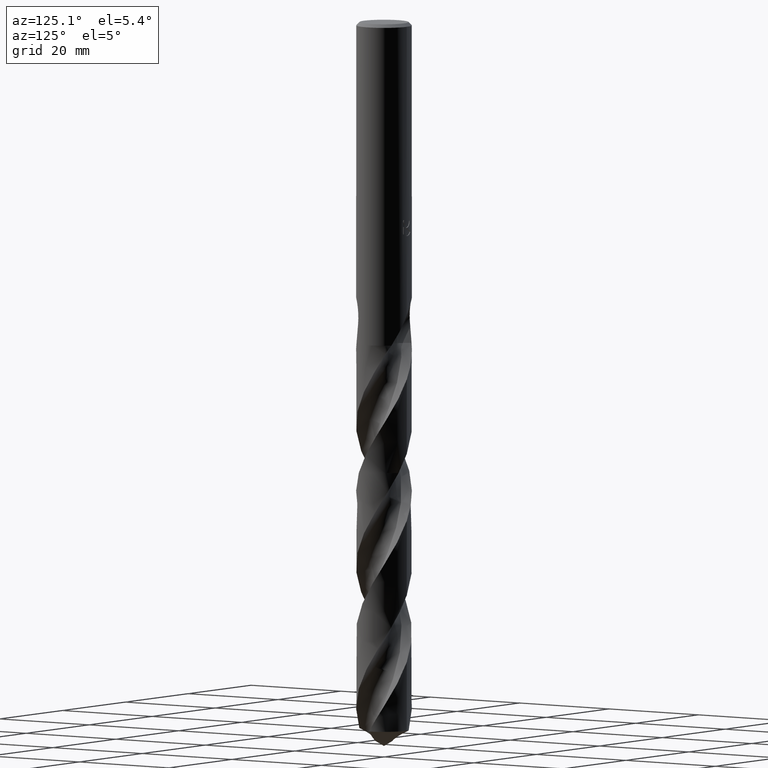
[diagram: clean part render]
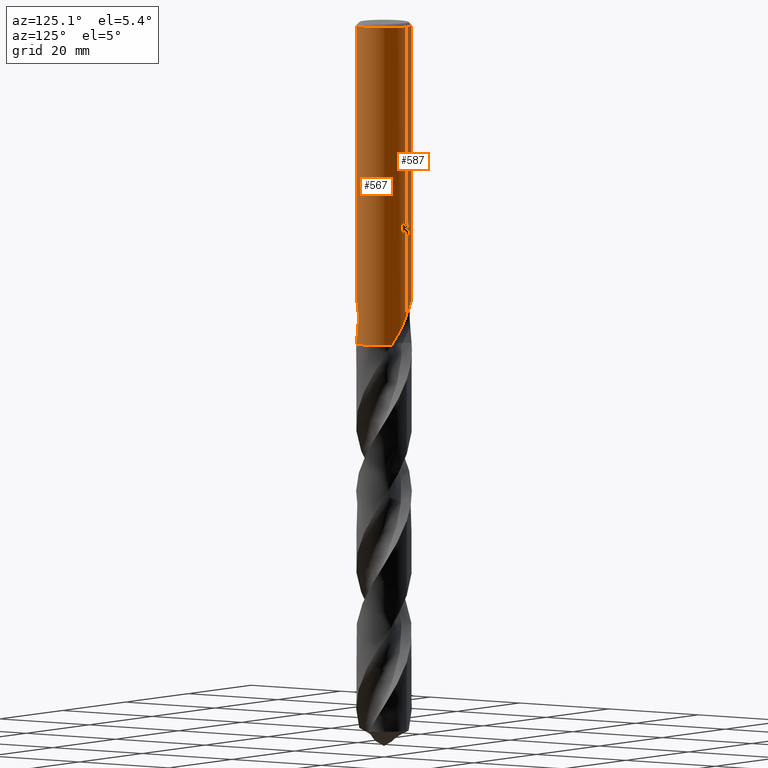
[diagram: same view with one multi-face feature highlighted, each face labeled with its STEP entity id]
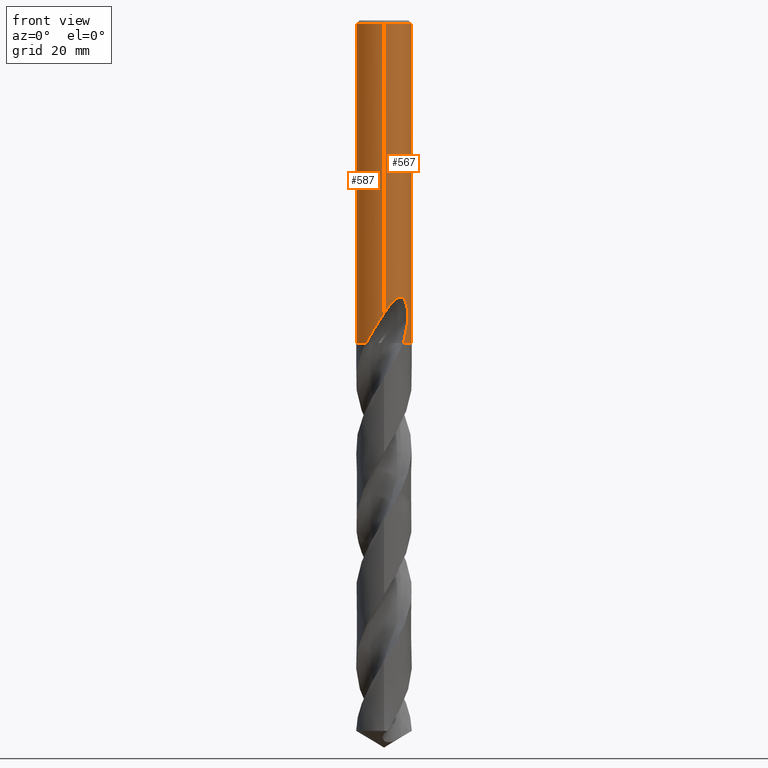
[diagram: same view with one multi-face feature highlighted, each face labeled with its STEP entity id]
A machine part, auxiliary view. The highlighted faces form ONE feature: a constant-radius fillet chain: 2 tangent blend faces with common blend radius 5.1 mm. The faces share edges in the B-rep.
A second angle (front view) of the same feature is appended — it is thin or edge-on in the first view.
Their STEP definitions:
[1] entity #587 (Cylinder):
#273=EDGE_CURVE('',#465,#723,#772,.T.);
#289=EDGE_CURVE('',#565,#593,#790,.T.);
#367=EDGE_CURVE('',#379,#389,#874,.T.);
#379=VERTEX_POINT('',#887);
#389=VERTEX_POINT('',#898);
#401=VERTEX_POINT('',#911);
#453=VERTEX_POINT('',#964);
#455=EDGE_CURVE('',#379,#597,#966,.T.);
#459=VERTEX_POINT('',#970);
#461=VERTEX_POINT('',#972);
#465=VERTEX_POINT('',#976);
#467=EDGE_CURVE('',#461,#453,#978,.T.);
#485=EDGE_CURVE('',#723,#547,#997,.T.);
#505=EDGE_CURVE('',#593,#597,#1022,.T.);
#515=VERTEX_POINT('',#1034);
#535=EDGE_CURVE('',#515,#595,#1056,.T.);
#547=VERTEX_POINT('',#1070);
#551=EDGE_CURVE('',#547,#459,#1074,.T.);
#553=EDGE_CURVE('',#459,#515,#1076,.T.);
#565=VERTEX_POINT('',#1089);
#587=ADVANCED_FACE('',(#1115),#1116,.T.);
#593=VERTEX_POINT('',#1122);
#595=VERTEX_POINT('',#1124);
#597=VERTEX_POINT('',#1126);
#613=EDGE_CURVE('',#595,#461,#1142,.T.);
#671=EDGE_CURVE('',#401,#565,#1206,.T.);
#693=EDGE_CURVE('',#389,#699,#1231,.T.);
#699=VERTEX_POINT('',#1238);
#721=EDGE_CURVE('',#453,#401,#1261,.T.);
#723=VERTEX_POINT('',#1263);
#741=EDGE_CURVE('',#699,#465,#1282,.T.);
#772=LINE('',#1308,#1309);
#790=B_SPLINE_CURVE_WITH_KNOTS('',3,(#1361,#1362,#1363,#1364,#1365,#1366,#1367,#1368,#1369,#1370,#1371,#1372,#1373,#1374,#1375,#1376,#1377,#1378,#1379,#1380,#1381,#1382,#1383,#1384,#1385,#1386,#1387,#1388,#1389,#1390),.UNSPECIFIED.,.F.,.F.,(4,2,2,2,2,2,2,2,2,2,2,2,2,2,4),(0.0,2.49507195108771,3.85909418089835,5.09509911552188,6.53135879807487,8.25636433044795,9.74920674358357,10.4265543005104,10.9216576712197,11.3901997545515,11.9846176148891,12.8543127021492,14.090659980326,14.8994055225725,15.749331237709),.UNSPECIFIED.);
#874=B_SPLINE_CURVE_WITH_KNOTS('',3,(#2695,#2696,#2697,#2698,#2699,#2700,#2701,#2702,#2703,#2704,#2705,#2706,#2707,#2708,#2709,#2710,#2711,#2712,#2713,#2714,#2715,#2716,#2717,#2718,#2719,#2720,#2721,#2722,#2723,#2724),.UNSPECIFIED.,.F.,.F.,(4,2,2,2,2,2,2,2,2,2,2,2,2,2,4),(0.0,2.4950719510877,3.85909418089809,5.09509911552121,6.53135879807394,8.25636433044676,9.74920674358221,10.4265543005089,10.9216576712182,11.3901997545499,11.9846176148873,12.8543127021487,14.0906599803301,14.8994055225793,15.7493312377187),.UNSPECIFIED.);
#887=CARTESIAN_POINT('',(-3.24742117750425,-3.93246178568806,-59.0));
#898=CARTESIAN_POINT('',(1.57483056814362E-012,-5.1,-53.5838170409705));
#911=CARTESIAN_POINT('',(-4.34837494064783E-016,5.1,-39.0310253601034));
#964=CARTESIAN_POINT('',(-1.337052752443,4.92161456609359,-38.3720803908795));
#966=CIRCLE('',#3366,5.1);
#970=CARTESIAN_POINT('',(-0.562333990228013,5.06890328211481,-36.3171221986971));
#972=CARTESIAN_POINT('',(2.19355985221817E-015,5.1,-37.7128911336578));
#976=CARTESIAN_POINT('',(0.0,5.1,-0.600000000000001));
#978=ELLIPSE('',#3379,5.68613500341859,5.1);
#997=B_SPLINE_CURVE_WITH_KNOTS('',3,(#3403,#3404,#3405,#3406,#3407,#3408,#3409,#3410,#3411,#3412,#3413,#3414,#3415,#3416,#3417,#3418,#3419,#3420,#3421,#3422,#3423,#3424,#3425,#3426,#3427,#3428,#3429),.UNSPECIFIED.,.F.,.F.,(4,2,3,2,2,2,2,2,2,2,2,2,4),(-0.54245000038307,-0.271225000191535,0.0,0.271225000191535,0.542450000383069,0.814222661505411,1.08599532262775,1.35684967927438,1.62770403592101,1.89882935782258,2.16995467972414,2.4410800016257,2.71220532352727),.UNSPECIFIED.);
#1022=B_SPLINE_CURVE_WITH_KNOTS('',3,(#3896,#3897,#3898,#3899),.UNSPECIFIED.,.F.,.F.,(4,4),(0.0,2.92581018479683),.UNSPECIFIED.);
#1034=CARTESIAN_POINT('',(-1.0350734039088,4.99385853309049,-36.3171221986971));
#1056=B_SPLINE_CURVE_WITH_KNOTS('',3,(#3966,#3967,#3968,#3969,#3970,#3971,#3972,#3973,#3974,#3975,#3976,#3977,#3978,#3979),.UNSPECIFIED.,.F.,.F.,(4,2,2,2,2,2,4),(3.1327778661681,3.58005301390658,4.02732816164506,4.47460330938354,4.92100069602385,5.36739808266417,5.81617911595777),.UNSPECIFIED.);
#1070=CARTESIAN_POINT('',(-0.486378944383045,5.07675442802395,-36.6432837483006));
#1074=B_SPLINE_CURVE_WITH_KNOTS('',3,(#4244,#4245,#4246,#4247,#4248,#4249,#4250,#4251,#4252,#4253,#4254,#4255,#4256,#4257,#4258,#4259,#4260,#4261,#4262,#4263,#4264,#4265,#4266,#4267,#4268,#4269,#4270),.UNSPECIFIED.,.F.,.F.,(4,2,3,2,2,2,2,2,2,2,2,2,4),(-0.54245000038307,-0.271225000191535,0.0,0.271225000191535,0.542450000383069,0.814222661505411,1.08599532262775,1.35684967927438,1.62770403592101,1.89882935782258,2.16995467972414,2.4410800016257,2.71220532352727),.UNSPECIFIED.);
#1076=CIRCLE('',#4273,5.1);
#1089=CARTESIAN_POINT('',(-1.5728321666993E-012,5.1,-53.5838170409705));
#1115=FACE_OUTER_BOUND('',#5776,.T.);
#1116=CYLINDRICAL_SURFACE('',#5777,5.1);
#1122=CARTESIAN_POINT('',(-4.1495750328572,2.96496661814061,-56.2123408369702));
#1124=CARTESIAN_POINT('',(-4.71438336917936E-016,5.1,-37.5000801551882));
#1126=CARTESIAN_POINT('',(-3.54621439273004,3.66529173201729,-59.0));
#1142=LINE('',#5985,#5986);
#1206=LINE('',#6931,#6932);
#1231=LINE('',#6989,#6990);
#1238=CARTESIAN_POINT('',(6.24549240449412E-016,-5.1,-0.600000000000001));
#1261=B_SPLINE_CURVE_WITH_KNOTS('',3,(#7194,#7195,#7196,#7197,#7198,#7199,#7200,#7201,#7202,#7203,#7204,#7205,#7206,#7207,#7208,#7209),.UNSPECIFIED.,.F.,.F.,(4,2,2,2,2,2,2,4),(5.87324473674315,6.18243886508369,6.49170623490269,6.80097360472168,7.11024097454068,7.41950834435968,7.72833448828951,8.03716063221934),.UNSPECIFIED.);
#1263=CARTESIAN_POINT('',(-5.17061753044343E-015,5.1,-37.0232688117743));
#1282=CIRCLE('',#7244,5.1);
#1308=CARTESIAN_POINT('',(-6.24549240449412E-016,5.1,-50.0));
#1309=VECTOR('',#7261,1.0);
#1361=CARTESIAN_POINT('',(3.24742117750425,3.93246178568806,-59.0));
#1362=CARTESIAN_POINT('',(2.91119083963154,4.21012030577873,-58.2917879950074));
#1363=CARTESIAN_POINT('',(2.52479950570337,4.45683804632251,-57.6313229566782));
#1364=CARTESIAN_POINT('',(1.85105039082137,4.75938644051252,-56.5277533242261));
#1365=CARTESIAN_POINT('',(1.6084232083032,4.84648102013344,-56.139165925362));
#1366=CARTESIAN_POINT('',(1.13864745598152,4.97666403947382,-55.3868267743813));
#1367=CARTESIAN_POINT('',(0.913585168848128,5.02265751522055,-55.0265639749729));
#1368=CARTESIAN_POINT('',(0.426365947176057,5.08901340561634,-54.2500309867315));
#1369=CARTESIAN_POINT('',(0.160126205962633,5.10456081362638,-53.8276645279075));
#1370=CARTESIAN_POINT('',(-0.431084993266191,5.09198265498413,-52.9242168674047));
#1371=CARTESIAN_POINT('',(-0.781640918551222,5.05342792976026,-52.4101465984535));
#1372=CARTESIAN_POINT('',(-1.45719454834791,4.89795977138735,-51.5632769346285));
#1373=CARTESIAN_POINT('',(-1.83056095313254,4.77970698025273,-51.1505081833019));
#1374=CARTESIAN_POINT('',(-2.3958772324111,4.50645958400116,-50.7636848026743));
#1375=CARTESIAN_POINT('',(-2.58315642428741,4.40321796510914,-50.6680129607589));
#1376=CARTESIAN_POINT('',(-2.91132122364478,4.19064084015244,-50.5945383257956));
#1377=CARTESIAN_POINT('',(-3.04592400676687,4.09382898292653,-50.5931841829305));
#1378=CARTESIAN_POINT('',(-3.2966322012331,3.89441605033037,-50.657562784038));
#1379=CARTESIAN_POINT('',(-3.40628076258924,3.79810233528831,-50.7179100484641));
#1380=CARTESIAN_POINT('',(-3.62941954615205,3.58703436846283,-50.9067176130963));
#1381=CARTESIAN_POINT('',(-3.73265415588613,3.47765238326494,-51.0461165136766));
#1382=CARTESIAN_POINT('',(-3.94411228907157,3.23880905160181,-51.4278306134575));
#1383=CARTESIAN_POINT('',(-4.04518257092402,3.10874361137162,-51.7109509597914));
#1384=CARTESIAN_POINT('',(-4.23522733916125,2.84759531768919,-52.5030683856471));
#1385=CARTESIAN_POINT('',(-4.30392323678693,2.7363743142797,-53.0671972662669));
#1386=CARTESIAN_POINT('',(-4.33787989357989,2.68205885755507,-54.1110998027676));
#1387=CARTESIAN_POINT('',(-4.32987072141869,2.69533865871961,-54.5267309087546));
#1388=CARTESIAN_POINT('',(-4.27338162640222,2.78408246543096,-55.3702497229125));
#1389=CARTESIAN_POINT('',(-4.22295681717223,2.86226623082525,-55.7949627997376));
#1390=CARTESIAN_POINT('',(-4.1495750328572,2.96496661814061,-56.2123408369702));
#2695=CARTESIAN_POINT('',(-3.24742117750425,-3.93246178568806,-59.0));
#2696=CARTESIAN_POINT('',(-2.91119083963154,-4.21012030577873,-58.2917879950075));
#2697=CARTESIAN_POINT('',(-2.52479950570337,-4.45683804632251,-57.6313229566782));
#2698=CARTESIAN_POINT('',(-1.85105039082141,-4.7593864405125,-56.5277533242262));
#2699=CARTESIAN_POINT('',(-1.60842320830329,-4.84648102013342,-56.1391659253621));
#2700=CARTESIAN_POINT('',(-1.13864745598147,-4.97666403947384,-55.3868267743813));
#2701=CARTESIAN_POINT('',(-0.913585168848026,-5.02265751522056,-55.0265639749727));
#2702=CARTESIAN_POINT('',(-0.426365947176129,-5.08901340561633,-54.2500309867317));
#2703=CARTESIAN_POINT('',(-0.160126205962662,-5.10456081362639,-53.8276645279075));
#2704=CARTESIAN_POINT('',(0.431084993266238,-5.09198265498414,-52.9242168674046));
#2705=CARTESIAN_POINT('',(0.781640918551239,-5.05342792976026,-52.4101465984535));
#2706=CARTESIAN_POINT('',(1.45719454834791,-4.89795977138735,-51.5632769346286));
#2707=CARTESIAN_POINT('',(1.83056095313254,-4.77970698025273,-51.1505081833019));
#2708=CARTESIAN_POINT('',(2.39587723241107,-4.50645958400118,-50.7636848026744));
#2709=CARTESIAN_POINT('',(2.58315642428739,-4.40321796510915,-50.6680129607589));
#2710=CARTESIAN_POINT('',(2.91132122364481,-4.19064084015242,-50.5945383257956));
#2711=CARTESIAN_POINT('',(3.04592400676688,-4.09382898292652,-50.5931841829305));
#2712=CARTESIAN_POINT('',(3.29663220123308,-3.89441605033039,-50.657562784038));
#2713=CARTESIAN_POINT('',(3.40628076258921,-3.79810233528833,-50.717910048464));
#2714=CARTESIAN_POINT('',(3.62941954615204,-3.58703436846285,-50.9067176130963));
#2715=CARTESIAN_POINT('',(3.73265415588611,-3.47765238326496,-51.0461165136766));
#2716=CARTESIAN_POINT('',(3.94411228907184,-3.23880905160151,-51.427830613458));
#2717=CARTESIAN_POINT('',(4.04518257092419,-3.10874361137138,-51.7109509597922));
#2718=CARTESIAN_POINT('',(4.23522733916121,-2.84759531768925,-52.503068385647));
#2719=CARTESIAN_POINT('',(4.30392323678692,-2.73637431427971,-53.0671972662667));
#2720=CARTESIAN_POINT('',(4.33787989357989,-2.68205885755508,-54.1110998027676));
#2721=CARTESIAN_POINT('',(4.32987072141869,-2.69533865871961,-54.5267309087546));
#2722=CARTESIAN_POINT('',(4.27338162640221,-2.78408246543096,-55.3702497229125));
#2723=CARTESIAN_POINT('',(4.22295681717222,-2.86226623082526,-55.7949627997376));
#2724=CARTESIAN_POINT('',(4.1495750328572,-2.96496661814061,-56.2123408369702));
#3366=AXIS2_PLACEMENT_3D('',#7423,#7424,#7425);
#3379=AXIS2_PLACEMENT_3D('',#7426,#7427,#7428);
#3403=CARTESIAN_POINT('',(0.665112014062878,5.05644400826799,-35.8135855782881));
#3404=CARTESIAN_POINT('',(0.728732759177342,5.04807549437758,-35.8772725904178));
#3405=CARTESIAN_POINT('',(0.783965507824817,5.0395216499662,-35.9579451527898));
#3406=CARTESIAN_POINT('',(0.857304307905541,5.02756498877752,-36.134918835518));
#3407=CARTESIAN_POINT('',(0.875400981188567,5.02430822324169,-36.2312336791896));
#3408=CARTESIAN_POINT('',(0.875400981188567,5.02430822324169,-36.3216420125868));
#3409=CARTESIAN_POINT('',(0.875400981188567,5.02430822324169,-36.412050345984));
#3410=CARTESIAN_POINT('',(0.857304307905541,5.02756498877752,-36.5083651896556));
#3411=CARTESIAN_POINT('',(0.783965507824817,5.0395216499662,-36.6853388723838));
#3412=CARTESIAN_POINT('',(0.728732759177342,5.04807549437758,-36.7660114347558));
#3413=CARTESIAN_POINT('',(0.601362805139902,5.06482941996687,-36.8935140566308));
#3414=CARTESIAN_POINT('',(0.520623311615833,5.07413563171059,-36.9488654361721));
#3415=CARTESIAN_POINT('',(0.343486796073947,5.08919619017677,-37.0223713477532));
#3416=CARTESIAN_POINT('',(0.247074601264119,5.09481705758166,-37.0405166027747));
#3417=CARTESIAN_POINT('',(0.0662841380266842,5.10036839410132,-37.0405166027747));
#3418=CARTESIAN_POINT('',(-0.0299865705721175,5.10068059718319,-37.0224808949225));
#3419=CARTESIAN_POINT('',(-0.207046043104731,5.09656489069507,-36.9491587916358));
#3420=CARTESIAN_POINT('',(-0.287839384125275,5.09227224174034,-36.8938759190922));
#3421=CARTESIAN_POINT('',(-0.415475324783489,5.08345124233311,-36.7663249351442));
#3422=CARTESIAN_POINT('',(-0.470827655465558,5.0783543697596,-36.6855120851898));
#3423=CARTESIAN_POINT('',(-0.544266154193491,5.07100938160885,-36.5083619296605));
#3424=CARTESIAN_POINT('',(-0.562348199187247,5.06890170578113,-36.4120171198873));
#3425=CARTESIAN_POINT('',(-0.562348199187247,5.06890170578113,-36.2312669052863));
#3426=CARTESIAN_POINT('',(-0.544266154193491,5.07100938160885,-36.134922095513));
#3427=CARTESIAN_POINT('',(-0.470827655465561,5.0783543697596,-35.9577719399838));
#3428=CARTESIAN_POINT('',(-0.415475324783488,5.08345124233311,-35.8769590900294));
#3429=CARTESIAN_POINT('',(-0.351625448364018,5.08786394708652,-35.8131517132023));
#3896=CARTESIAN_POINT('',(-4.14957503290982,2.96496661806697,-56.2123408369991));
#3897=CARTESIAN_POINT('',(-3.98545037198894,3.19466485179822,-57.1458575803677));
#3898=CARTESIAN_POINT('',(-3.78770075942725,3.43165073101615,-58.0848955192884));
#3899=CARTESIAN_POINT('',(-3.54621439273004,3.66529173201729,-59.0));
#3966=CARTESIAN_POINT('',(-0.944706836263088,5.01173911866108,-35.8727259800879));
#3967=CARTESIAN_POINT('',(-1.00521245027981,5.00033388654814,-36.0184840932872));
#3968=CARTESIAN_POINT('',(-1.03510901790186,4.99385115127176,-36.17721014482));
#3969=CARTESIAN_POINT('',(-1.03510901790186,4.99385115127176,-36.4753935766456));
#3970=CARTESIAN_POINT('',(-1.00521245027981,5.00033388654814,-36.6341196281784));
#3971=CARTESIAN_POINT('',(-0.884201222246383,5.02314435077405,-36.925635854577));
#3972=CARTESIAN_POINT('',(-0.793108502826316,5.03906817842612,-37.0584665999684));
#3973=CARTESIAN_POINT('',(-0.583316617564819,5.06763523718883,-37.2680143115844));
#3974=CARTESIAN_POINT('',(-0.450558986855022,5.08215307546991,-37.3589069580526));
#3975=CARTESIAN_POINT('',(-0.159305168906875,5.09959852784063,-37.4795950073723));
#3976=CARTESIAN_POINT('',(-0.000778745339239356,5.10217018280566,-37.5093686300866));
#3977=CARTESIAN_POINT('',(0.29748846268838,5.0935134124683,-37.5093686300866));
#3978=CARTESIAN_POINT('',(0.456383357527454,5.08165826176827,-37.4793097464415));
#3979=CARTESIAN_POINT('',(0.602110075667574,5.0643324788939,-37.4187269827246));
#4244=CARTESIAN_POINT('',(0.665112014062878,5.05644400826799,-35.8135855782881));
#4245=CARTESIAN_POINT('',(0.728732759177342,5.04807549437758,-35.8772725904178));
#4246=CARTESIAN_POINT('',(0.783965507824817,5.0395216499662,-35.9579451527898));
#4247=CARTESIAN_POINT('',(0.857304307905541,5.02756498877752,-36.134918835518));
#4248=CARTESIAN_POINT('',(0.875400981188567,5.02430822324169,-36.2312336791896));
#4249=CARTESIAN_POINT('',(0.875400981188567,5.02430822324169,-36.3216420125868));
#4250=CARTESIAN_POINT('',(0.875400981188567,5.02430822324169,-36.412050345984));
#4251=CARTESIAN_POINT('',(0.857304307905541,5.02756498877752,-36.5083651896556));
#4252=CARTESIAN_POINT('',(0.783965507824817,5.0395216499662,-36.6853388723838));
#4253=CARTESIAN_POINT('',(0.728732759177342,5.04807549437758,-36.7660114347558));
#4254=CARTESIAN_POINT('',(0.601362805139902,5.06482941996687,-36.8935140566308));
#4255=CARTESIAN_POINT('',(0.520623311615833,5.07413563171059,-36.9488654361721));
#4256=CARTESIAN_POINT('',(0.343486796073947,5.08919619017677,-37.0223713477532));
#4257=CARTESIAN_POINT('',(0.247074601264119,5.09481705758166,-37.0405166027747));
#4258=CARTESIAN_POINT('',(0.0662841380266842,5.10036839410132,-37.0405166027747));
#4259=CARTESIAN_POINT('',(-0.0299865705721175,5.10068059718319,-37.0224808949225));
#4260=CARTESIAN_POINT('',(-0.207046043104731,5.09656489069507,-36.9491587916358));
#4261=CARTESIAN_POINT('',(-0.287839384125275,5.09227224174034,-36.8938759190922));
#4262=CARTESIAN_POINT('',(-0.415475324783489,5.08345124233311,-36.7663249351442));
#4263=CARTESIAN_POINT('',(-0.470827655465558,5.0783543697596,-36.6855120851898));
#4264=CARTESIAN_POINT('',(-0.544266154193491,5.07100938160885,-36.5083619296605));
#4265=CARTESIAN_POINT('',(-0.562348199187247,5.06890170578113,-36.4120171198873));
#4266=CARTESIAN_POINT('',(-0.562348199187247,5.06890170578113,-36.2312669052863));
#4267=CARTESIAN_POINT('',(-0.544266154193491,5.07100938160885,-36.134922095513));
#4268=CARTESIAN_POINT('',(-0.470827655465561,5.0783543697596,-35.9577719399838));
#4269=CARTESIAN_POINT('',(-0.415475324783488,5.08345124233311,-35.8769590900294));
#4270=CARTESIAN_POINT('',(-0.351625448364018,5.08786394708652,-35.8131517132023));
#4273=AXIS2_PLACEMENT_3D('',#7585,#7586,#7587);
#5776=EDGE_LOOP('',(#7660,#7661,#7662,#7663,#7664,#7665,#7666,#7667,#7668,#7669,#7670,#7671,#7672,#7673,#7674));
#5777=AXIS2_PLACEMENT_3D('',#7675,#7676,#7677);
#5985=CARTESIAN_POINT('',(-6.24549240449412E-016,5.1,-50.0));
#5986=VECTOR('',#7683,1.0);
#6931=CARTESIAN_POINT('',(-6.24549240449412E-016,5.1,-50.0));
#6932=VECTOR('',#7748,1.0);
#6989=CARTESIAN_POINT('',(6.24549240449412E-016,-5.1,-50.0));
#6990=VECTOR('',#7778,1.0);
#7194=CARTESIAN_POINT('',(-1.37922599933738,4.90996289627038,-38.3123962688925));
#7195=CARTESIAN_POINT('',(-1.31959769533268,4.92671269841427,-38.4009330256702));
#7196=CARTESIAN_POINT('',(-1.25206602397173,4.94447024885089,-38.4821573412493));
#7197=CARTESIAN_POINT('',(-1.10833787263595,4.97865896753975,-38.6259375651088));
#7198=CARTESIAN_POINT('',(-1.02710597085847,4.99631582797304,-38.6935240377976));
#7199=CARTESIAN_POINT('',(-0.849977948011208,5.02947870221362,-38.8128919662393));
#7200=CARTESIAN_POINT('',(-0.754082289007218,5.04495521871936,-38.8646823006152));
#7201=CARTESIAN_POINT('',(-0.55362898699065,5.07086858454195,-38.9480612413054));
#7202=CARTESIAN_POINT('',(-0.448899033156139,5.08130691254714,-38.979715704766));
#7203=CARTESIAN_POINT('',(-0.237810800028379,5.0955506380432,-39.0213270064194));
#7204=CARTESIAN_POINT('',(-0.131449698485252,5.09934783517513,-39.0312723335086));
#7205=CARTESIAN_POINT('',(0.0745782867712415,5.10049361771818,-39.0312723335086));
#7206=CARTESIAN_POINT('',(0.180829253417327,5.09788775415621,-39.0213548542806));
#7207=CARTESIAN_POINT('',(0.391766284334538,5.08602771830067,-38.9798189965383));
#7208=CARTESIAN_POINT('',(0.496454977666012,5.07678180453077,-38.9482116125916));
#7209=CARTESIAN_POINT('',(0.596663186202836,5.06497710184659,-38.9065663980377));
#7244=AXIS2_PLACEMENT_3D('',#7816,#7817,#7818);
#7261=DIRECTION('',(0.0,0.0,-1.0));
#7423=CARTESIAN_POINT('',(0.0,0.0,-59.0));
#7424=DIRECTION('',(0.0,0.0,-1.0));
#7425=DIRECTION('',(0.0,1.0,0.0));
#7426=CARTESIAN_POINT('',(0.0,0.0,-37.7128911336578));
#7427=DIRECTION('',(-0.442195774284071,0.0,0.896918556617774));
#7428=DIRECTION('',(0.896918556617774,-0.0,0.442195774284071));
#7585=CARTESIAN_POINT('',(0.0,0.0,-36.3171221986971));
#7586=DIRECTION('',(0.0,-0.0,1.0));
#7587=DIRECTION('',(0.0,1.0,0.0));
#7660=ORIENTED_EDGE('',*,*,#273,.T.);
#7661=ORIENTED_EDGE('',*,*,#485,.T.);
#7662=ORIENTED_EDGE('',*,*,#551,.T.);
#7663=ORIENTED_EDGE('',*,*,#553,.T.);
#7664=ORIENTED_EDGE('',*,*,#535,.T.);
#7665=ORIENTED_EDGE('',*,*,#613,.T.);
#7666=ORIENTED_EDGE('',*,*,#467,.T.);
#7667=ORIENTED_EDGE('',*,*,#721,.T.);
#7668=ORIENTED_EDGE('',*,*,#671,.T.);
#7669=ORIENTED_EDGE('',*,*,#289,.T.);
#7670=ORIENTED_EDGE('',*,*,#505,.T.);
#7671=ORIENTED_EDGE('',*,*,#455,.F.);
#7672=ORIENTED_EDGE('',*,*,#367,.T.);
#7673=ORIENTED_EDGE('',*,*,#693,.T.);
#7674=ORIENTED_EDGE('',*,*,#741,.T.);
#7675=CARTESIAN_POINT('',(0.0,0.0,-50.0));
#7676=DIRECTION('',(-0.0,-0.0,1.0));
#7677=DIRECTION('',(0.0,1.0,0.0));
#7683=DIRECTION('',(0.0,0.0,-1.0));
#7748=DIRECTION('',(0.0,0.0,-1.0));
#7778=DIRECTION('',(-0.0,-0.0,1.0));
#7816=CARTESIAN_POINT('',(0.0,0.0,-0.600000000000001));
#7817=DIRECTION('',(0.0,0.0,-1.0));
#7818=DIRECTION('',(0.0,1.0,0.0));
[2] entity #567 (Cylinder):
#273=EDGE_CURVE('',#465,#723,#772,.T.);
#287=EDGE_CURVE('',#423,#373,#788,.T.);
#307=EDGE_CURVE('',#357,#517,#809,.T.);
#321=EDGE_CURVE('',#389,#357,#824,.T.);
#353=VERTEX_POINT('',#859);
#357=VERTEX_POINT('',#863);
#373=VERTEX_POINT('',#880);
#389=VERTEX_POINT('',#898);
#401=VERTEX_POINT('',#911);
#403=EDGE_CURVE('',#581,#517,#913,.T.);
#423=VERTEX_POINT('',#934);
#439=EDGE_CURVE('',#353,#723,#950,.T.);
#445=VERTEX_POINT('',#956);
#465=VERTEX_POINT('',#976);
#497=EDGE_CURVE('',#581,#565,#1012,.T.);
#503=EDGE_CURVE('',#605,#673,#1020,.T.);
#517=VERTEX_POINT('',#1036);
#549=EDGE_CURVE('',#401,#445,#1072,.T.);
#565=VERTEX_POINT('',#1089);
#567=ADVANCED_FACE('',(#1091),#1092,.T.);
#581=VERTEX_POINT('',#1107);
#603=EDGE_CURVE('',#445,#605,#1132,.T.);
#605=VERTEX_POINT('',#1134);
#625=EDGE_CURVE('',#465,#699,#1154,.T.);
#671=EDGE_CURVE('',#401,#565,#1206,.T.);
#673=VERTEX_POINT('',#1208);
#679=EDGE_CURVE('',#373,#353,#1214,.T.);
#693=EDGE_CURVE('',#389,#699,#1231,.T.);
#699=VERTEX_POINT('',#1238);
#723=VERTEX_POINT('',#1263);
#729=EDGE_CURVE('',#673,#423,#1269,.T.);
#772=LINE('',#1308,#1309);
#788=LINE('',#1357,#1358);
#809=B_SPLINE_CURVE_WITH_KNOTS('',3,(#1418,#1419,#1420,#1421),.UNSPECIFIED.,.F.,.F.,(4,4),(0.0,2.92581018479658),.UNSPECIFIED.);
#824=B_SPLINE_CURVE_WITH_KNOTS('',3,(#2566,#2567,#2568,#2569,#2570,#2571,#2572,#2573,#2574,#2575,#2576,#2577,#2578,#2579,#2580,#2581,#2582,#2583,#2584,#2585,#2586,#2587,#2588,#2589,#2590,#2591,#2592,#2593,#2594,#2595),.UNSPECIFIED.,.F.,.F.,(4,2,2,2,2,2,2,2,2,2,2,2,2,2,4),(0.0,2.4950719510877,3.85909418089809,5.09509911552121,6.53135879807394,8.25636433044676,9.74920674358221,10.4265543005089,10.9216576712182,11.3901997545499,11.9846176148873,12.8543127021487,14.0906599803301,14.8994055225793,15.7493312377187),.UNSPECIFIED.);
#859=CARTESIAN_POINT('',(0.799431726384364,5.03695432924005,-36.000000276873));
#863=CARTESIAN_POINT('',(4.14957503285719,-2.96496661814062,-56.2123408369702));
#880=CARTESIAN_POINT('',(1.33721006514658,4.92157182632446,-36.5150484364821));
#898=CARTESIAN_POINT('',(1.57483056814362E-012,-5.1,-53.5838170409705));
#911=CARTESIAN_POINT('',(-4.34837494064783E-016,5.1,-39.0310253601034));
#913=CIRCLE('',#2777,5.1);
#934=CARTESIAN_POINT('',(1.33721006514658,4.92157182632446,-38.2901657003257));
#950=B_SPLINE_CURVE_WITH_KNOTS('',3,(#3168,#3169,#3170,#3171,#3172,#3173,#3174,#3175,#3176,#3177,#3178,#3179,#3180,#3181,#3182,#3183,#3184,#3185,#3186,#3187,#3188,#3189,#3190,#3191,#3192,#3193,#3194),.UNSPECIFIED.,.F.,.F.,(4,2,3,2,2,2,2,2,2,2,2,2,4),(-0.54245000038307,-0.271225000191535,0.0,0.271225000191535,0.542450000383069,0.814222661505411,1.08599532262775,1.35684967927438,1.62770403592101,1.89882935782258,2.16995467972414,2.4410800016257,2.71220532352727),.UNSPECIFIED.);
#956=CARTESIAN_POINT('',(0.29010312703583,5.0917423516596,-38.9998328990228));
#976=CARTESIAN_POINT('',(0.0,5.1,-0.600000000000001));
#1012=B_SPLINE_CURVE_WITH_KNOTS('',3,(#3446,#3447,#3448,#3449,#3450,#3451,#3452,#3453,#3454,#3455,#3456,#3457,#3458,#3459,#3460,#3461,#3462,#3463,#3464,#3465,#3466,#3467,#3468,#3469,#3470,#3471,#3472,#3473,#3474,#3475),.UNSPECIFIED.,.F.,.F.,(4,2,2,2,2,2,2,2,2,2,2,2,2,2,4),(0.0,2.49507195108771,3.85909418089835,5.09509911552188,6.53135879807487,8.25636433044795,9.74920674358357,10.4265543005104,10.9216576712197,11.3901997545515,11.9846176148891,12.8543127021492,14.090659980326,14.8994055225725,15.749331237709),.UNSPECIFIED.);
#1020=LINE('',#3892,#3893);
#1036=CARTESIAN_POINT('',(3.54621439273004,-3.66529173201729,-59.0));
#1072=B_SPLINE_CURVE_WITH_KNOTS('',3,(#4226,#4227,#4228,#4229,#4230,#4231,#4232,#4233,#4234,#4235,#4236,#4237,#4238,#4239,#4240,#4241),.UNSPECIFIED.,.F.,.F.,(4,2,2,2,2,2,2,4),(5.87324473674315,6.18243886508369,6.49170623490269,6.80097360472168,7.11024097454068,7.41950834435968,7.72833448828951,8.03716063221934),.UNSPECIFIED.);
#1089=CARTESIAN_POINT('',(-1.5728321666993E-012,5.1,-53.5838170409705));
#1091=FACE_OUTER_BOUND('',#4593,.T.);
#1092=CYLINDRICAL_SURFACE('',#4594,5.1);
#1107=CARTESIAN_POINT('',(3.24742117750425,3.93246178568806,-59.0));
#1132=ELLIPSE('',#5952,15.5447723241858,5.1);
#1134=CARTESIAN_POINT('',(0.873560781758957,5.02462849975724,-37.3198931596091));
#1154=CIRCLE('',#6156,5.1);
#1206=LINE('',#6931,#6932);
#1208=CARTESIAN_POINT('',(0.873560781758956,5.02462849975724,-38.7587351791531));
#1214=B_SPLINE_CURVE_WITH_KNOTS('',3,(#6945,#6946,#6947,#6948,#6949,#6950,#6951,#6952,#6953,#6954),.UNSPECIFIED.,.F.,.F.,(4,2,2,2,4),(0.61825586020904,0.92738379031356,1.23651172041808,1.54533784702361,1.85416397362914),.UNSPECIFIED.);
#1231=LINE('',#6989,#6990);
#1238=CARTESIAN_POINT('',(6.24549240449412E-016,-5.1,-0.600000000000001));
#1263=CARTESIAN_POINT('',(-5.17061753044343E-015,5.1,-37.0232688117743));
#1269=B_SPLINE_CURVE_WITH_KNOTS('',3,(#7219,#7220,#7221,#7222,#7223,#7224,#7225,#7226,#7227,#7228),.UNSPECIFIED.,.F.,.F.,(4,2,2,2,4),(8.03715988075881,8.3459859969326,8.65481211310639,8.96394003247406,9.27306795184173),.UNSPECIFIED.);
#1308=CARTESIAN_POINT('',(-6.24549240449412E-016,5.1,-50.0));
#1309=VECTOR('',#7261,1.0);
#1357=CARTESIAN_POINT('',(1.33721006514658,4.92157182632446,-37.4026070684039));
#1358=VECTOR('',#7281,1.0);
#1418=CARTESIAN_POINT('',(4.14957503290981,-2.96496661806698,-56.2123408369991));
#1419=CARTESIAN_POINT('',(3.98545037198894,-3.19466485179821,-57.1458575803677));
#1420=CARTESIAN_POINT('',(3.78770075942725,-3.43165073101615,-58.0848955192884));
#1421=CARTESIAN_POINT('',(3.54621439273004,-3.66529173201729,-59.0));
#2566=CARTESIAN_POINT('',(-3.24742117750425,-3.93246178568806,-59.0));
#2567=CARTESIAN_POINT('',(-2.91119083963154,-4.21012030577873,-58.2917879950075));
#2568=CARTESIAN_POINT('',(-2.52479950570337,-4.45683804632251,-57.6313229566782));
#2569=CARTESIAN_POINT('',(-1.85105039082141,-4.7593864405125,-56.5277533242262));
#2570=CARTESIAN_POINT('',(-1.60842320830329,-4.84648102013342,-56.1391659253621));
#2571=CARTESIAN_POINT('',(-1.13864745598147,-4.97666403947384,-55.3868267743813));
#2572=CARTESIAN_POINT('',(-0.913585168848026,-5.02265751522056,-55.0265639749727));
#2573=CARTESIAN_POINT('',(-0.426365947176129,-5.08901340561633,-54.2500309867317));
#2574=CARTESIAN_POINT('',(-0.160126205962662,-5.10456081362639,-53.8276645279075));
#2575=CARTESIAN_POINT('',(0.431084993266238,-5.09198265498414,-52.9242168674046));
#2576=CARTESIAN_POINT('',(0.781640918551239,-5.05342792976026,-52.4101465984535));
#2577=CARTESIAN_POINT('',(1.45719454834791,-4.89795977138735,-51.5632769346286));
#2578=CARTESIAN_POINT('',(1.83056095313254,-4.77970698025273,-51.1505081833019));
#2579=CARTESIAN_POINT('',(2.39587723241107,-4.50645958400118,-50.7636848026744));
#2580=CARTESIAN_POINT('',(2.58315642428739,-4.40321796510915,-50.6680129607589));
#2581=CARTESIAN_POINT('',(2.91132122364481,-4.19064084015242,-50.5945383257956));
#2582=CARTESIAN_POINT('',(3.04592400676688,-4.09382898292652,-50.5931841829305));
#2583=CARTESIAN_POINT('',(3.29663220123308,-3.89441605033039,-50.657562784038));
#2584=CARTESIAN_POINT('',(3.40628076258921,-3.79810233528833,-50.717910048464));
#2585=CARTESIAN_POINT('',(3.62941954615204,-3.58703436846285,-50.9067176130963));
#2586=CARTESIAN_POINT('',(3.73265415588611,-3.47765238326496,-51.0461165136766));
#2587=CARTESIAN_POINT('',(3.94411228907184,-3.23880905160151,-51.427830613458));
#2588=CARTESIAN_POINT('',(4.04518257092419,-3.10874361137138,-51.7109509597922));
#2589=CARTESIAN_POINT('',(4.23522733916121,-2.84759531768925,-52.503068385647));
#2590=CARTESIAN_POINT('',(4.30392323678692,-2.73637431427971,-53.0671972662667));
#2591=CARTESIAN_POINT('',(4.33787989357989,-2.68205885755508,-54.1110998027676));
#2592=CARTESIAN_POINT('',(4.32987072141869,-2.69533865871961,-54.5267309087546));
#2593=CARTESIAN_POINT('',(4.27338162640221,-2.78408246543096,-55.3702497229125));
#2594=CARTESIAN_POINT('',(4.22295681717222,-2.86226623082526,-55.7949627997376));
#2595=CARTESIAN_POINT('',(4.1495750328572,-2.96496661814061,-56.2123408369702));
#2777=AXIS2_PLACEMENT_3D('',#7397,#7398,#7399);
#3168=CARTESIAN_POINT('',(0.665112014062878,5.05644400826799,-35.8135855782881));
#3169=CARTESIAN_POINT('',(0.728732759177342,5.04807549437758,-35.8772725904178));
#3170=CARTESIAN_POINT('',(0.783965507824817,5.0395216499662,-35.9579451527898));
#3171=CARTESIAN_POINT('',(0.857304307905541,5.02756498877752,-36.134918835518));
#3172=CARTESIAN_POINT('',(0.875400981188567,5.02430822324169,-36.2312336791896));
#3173=CARTESIAN_POINT('',(0.875400981188567,5.02430822324169,-36.3216420125868));
#3174=CARTESIAN_POINT('',(0.875400981188567,5.02430822324169,-36.412050345984));
#3175=CARTESIAN_POINT('',(0.857304307905541,5.02756498877752,-36.5083651896556));
#3176=CARTESIAN_POINT('',(0.783965507824817,5.0395216499662,-36.6853388723838));
#3177=CARTESIAN_POINT('',(0.728732759177342,5.04807549437758,-36.7660114347558));
#3178=CARTESIAN_POINT('',(0.601362805139902,5.06482941996687,-36.8935140566308));
#3179=CARTESIAN_POINT('',(0.520623311615833,5.07413563171059,-36.9488654361721));
#3180=CARTESIAN_POINT('',(0.343486796073947,5.08919619017677,-37.0223713477532));
#3181=CARTESIAN_POINT('',(0.247074601264119,5.09481705758166,-37.0405166027747));
#3182=CARTESIAN_POINT('',(0.0662841380266842,5.10036839410132,-37.0405166027747));
#3183=CARTESIAN_POINT('',(-0.0299865705721175,5.10068059718319,-37.0224808949225));
#3184=CARTESIAN_POINT('',(-0.207046043104731,5.09656489069507,-36.9491587916358));
#3185=CARTESIAN_POINT('',(-0.287839384125275,5.09227224174034,-36.8938759190922));
#3186=CARTESIAN_POINT('',(-0.415475324783489,5.08345124233311,-36.7663249351442));
#3187=CARTESIAN_POINT('',(-0.470827655465558,5.0783543697596,-36.6855120851898));
#3188=CARTESIAN_POINT('',(-0.544266154193491,5.07100938160885,-36.5083619296605));
#3189=CARTESIAN_POINT('',(-0.562348199187247,5.06890170578113,-36.4120171198873));
#3190=CARTESIAN_POINT('',(-0.562348199187247,5.06890170578113,-36.2312669052863));
#3191=CARTESIAN_POINT('',(-0.544266154193491,5.07100938160885,-36.134922095513));
#3192=CARTESIAN_POINT('',(-0.470827655465561,5.0783543697596,-35.9577719399838));
#3193=CARTESIAN_POINT('',(-0.415475324783488,5.08345124233311,-35.8769590900294));
#3194=CARTESIAN_POINT('',(-0.351625448364018,5.08786394708652,-35.8131517132023));
#3446=CARTESIAN_POINT('',(3.24742117750425,3.93246178568806,-59.0));
#3447=CARTESIAN_POINT('',(2.91119083963154,4.21012030577873,-58.2917879950074));
#3448=CARTESIAN_POINT('',(2.52479950570337,4.45683804632251,-57.6313229566782));
#3449=CARTESIAN_POINT('',(1.85105039082137,4.75938644051252,-56.5277533242261));
#3450=CARTESIAN_POINT('',(1.6084232083032,4.84648102013344,-56.139165925362));
#3451=CARTESIAN_POINT('',(1.13864745598152,4.97666403947382,-55.3868267743813));
#3452=CARTESIAN_POINT('',(0.913585168848128,5.02265751522055,-55.0265639749729));
#3453=CARTESIAN_POINT('',(0.426365947176057,5.08901340561634,-54.2500309867315));
#3454=CARTESIAN_POINT('',(0.160126205962633,5.10456081362638,-53.8276645279075));
#3455=CARTESIAN_POINT('',(-0.431084993266191,5.09198265498413,-52.9242168674047));
#3456=CARTESIAN_POINT('',(-0.781640918551222,5.05342792976026,-52.4101465984535));
#3457=CARTESIAN_POINT('',(-1.45719454834791,4.89795977138735,-51.5632769346285));
#3458=CARTESIAN_POINT('',(-1.83056095313254,4.77970698025273,-51.1505081833019));
#3459=CARTESIAN_POINT('',(-2.3958772324111,4.50645958400116,-50.7636848026743));
#3460=CARTESIAN_POINT('',(-2.58315642428741,4.40321796510914,-50.6680129607589));
#3461=CARTESIAN_POINT('',(-2.91132122364478,4.19064084015244,-50.5945383257956));
#3462=CARTESIAN_POINT('',(-3.04592400676687,4.09382898292653,-50.5931841829305));
#3463=CARTESIAN_POINT('',(-3.2966322012331,3.89441605033037,-50.657562784038));
#3464=CARTESIAN_POINT('',(-3.40628076258924,3.79810233528831,-50.7179100484641));
#3465=CARTESIAN_POINT('',(-3.62941954615205,3.58703436846283,-50.9067176130963));
#3466=CARTESIAN_POINT('',(-3.73265415588613,3.47765238326494,-51.0461165136766));
#3467=CARTESIAN_POINT('',(-3.94411228907157,3.23880905160181,-51.4278306134575));
#3468=CARTESIAN_POINT('',(-4.04518257092402,3.10874361137162,-51.7109509597914));
#3469=CARTESIAN_POINT('',(-4.23522733916125,2.84759531768919,-52.5030683856471));
#3470=CARTESIAN_POINT('',(-4.30392323678693,2.7363743142797,-53.0671972662669));
#3471=CARTESIAN_POINT('',(-4.33787989357989,2.68205885755507,-54.1110998027676));
#3472=CARTESIAN_POINT('',(-4.32987072141869,2.69533865871961,-54.5267309087546));
#3473=CARTESIAN_POINT('',(-4.27338162640222,2.78408246543096,-55.3702497229125));
#3474=CARTESIAN_POINT('',(-4.22295681717223,2.86226623082525,-55.7949627997376));
#3475=CARTESIAN_POINT('',(-4.1495750328572,2.96496661814061,-56.2123408369702));
#3892=CARTESIAN_POINT('',(0.873560781758957,5.02462849975724,-38.0393141693811));
#3893=VECTOR('',#7503,1.0);
#4226=CARTESIAN_POINT('',(-1.37922599933738,4.90996289627038,-38.3123962688925));
#4227=CARTESIAN_POINT('',(-1.31959769533268,4.92671269841427,-38.4009330256702));
#4228=CARTESIAN_POINT('',(-1.25206602397173,4.94447024885089,-38.4821573412493));
#4229=CARTESIAN_POINT('',(-1.10833787263595,4.97865896753975,-38.6259375651088));
#4230=CARTESIAN_POINT('',(-1.02710597085847,4.99631582797304,-38.6935240377976));
#4231=CARTESIAN_POINT('',(-0.849977948011208,5.02947870221362,-38.8128919662393));
#4232=CARTESIAN_POINT('',(-0.754082289007218,5.04495521871936,-38.8646823006152));
#4233=CARTESIAN_POINT('',(-0.55362898699065,5.07086858454195,-38.9480612413054));
#4234=CARTESIAN_POINT('',(-0.448899033156139,5.08130691254714,-38.979715704766));
#4235=CARTESIAN_POINT('',(-0.237810800028379,5.0955506380432,-39.0213270064194));
#4236=CARTESIAN_POINT('',(-0.131449698485252,5.09934783517513,-39.0312723335086));
#4237=CARTESIAN_POINT('',(0.0745782867712415,5.10049361771818,-39.0312723335086));
#4238=CARTESIAN_POINT('',(0.180829253417327,5.09788775415621,-39.0213548542806));
#4239=CARTESIAN_POINT('',(0.391766284334538,5.08602771830067,-38.9798189965383));
#4240=CARTESIAN_POINT('',(0.496454977666012,5.07678180453077,-38.9482116125916));
#4241=CARTESIAN_POINT('',(0.596663186202836,5.06497710184659,-38.9065663980377));
#4593=EDGE_LOOP('',(#7613,#7614,#7615,#7616,#7617,#7618,#7619,#7620,#7621,#7622,#7623,#7624,#7625,#7626,#7627));
#4594=AXIS2_PLACEMENT_3D('',#7628,#7629,#7630);
#5952=AXIS2_PLACEMENT_3D('',#7680,#7681,#7682);
#6156=AXIS2_PLACEMENT_3D('',#7687,#7688,#7689);
#6931=CARTESIAN_POINT('',(-6.24549240449412E-016,5.1,-50.0));
#6932=VECTOR('',#7748,1.0);
#6945=CARTESIAN_POINT('',(1.47548179433053,4.88190060064716,-36.7773064174489));
#6946=CARTESIAN_POINT('',(1.43381108967046,4.89449494234465,-36.6770884847591));
#6947=CARTESIAN_POINT('',(1.38203616934446,4.90956166684474,-36.5811835872972));
#6948=CARTESIAN_POINT('',(1.26265541892365,4.94161117718475,-36.4039911259733));
#6949=CARTESIAN_POINT('',(1.19503959040597,4.95856058181253,-36.3227042623184));
#6950=CARTESIAN_POINT('',(1.05118298489679,4.9910366033698,-36.1788978794122));
#6951=CARTESIAN_POINT('',(0.969928335832099,5.00772669421657,-36.1113408220589));
#6952=CARTESIAN_POINT('',(0.792772054061742,5.03880939218993,-35.9920429162908));
#6953=CARTESIAN_POINT('',(0.696871094147817,5.05317244050216,-35.9402933693197));
#6954=CARTESIAN_POINT('',(0.596662890600399,5.06497713666907,-35.8986481570212));
#6989=CARTESIAN_POINT('',(6.24549240449412E-016,-5.1,-50.0));
#6990=VECTOR('',#7778,1.0);
#7219=CARTESIAN_POINT('',(0.596662912901874,5.06497713404191,-38.9065659636738));
#7220=CARTESIAN_POINT('',(0.696871113029918,5.05317243783047,-38.864920752779));
#7221=CARTESIAN_POINT('',(0.792772069666927,5.03880938968058,-38.8131712075551));
#7222=CARTESIAN_POINT('',(0.969928345384368,5.00772669231196,-38.6938733058115));
#7223=CARTESIAN_POINT('',(1.05118299167295,4.99103660190569,-38.6263162507359));
#7224=CARTESIAN_POINT('',(1.19503959220196,4.95856058134138,-38.4825098727307));
#7225=CARTESIAN_POINT('',(1.26265541835434,4.94161117730309,-38.4012230118836));
#7226=CARTESIAN_POINT('',(1.38203616460326,4.90956166815208,-38.2240305566791));
#7227=CARTESIAN_POINT('',(1.43381108312216,4.89449494424922,-38.1281256625288));
#7228=CARTESIAN_POINT('',(1.47548178632691,4.88190060306614,-38.0279077333024));
#7261=DIRECTION('',(0.0,0.0,-1.0));
#7281=DIRECTION('',(-0.0,-0.0,1.0));
#7397=CARTESIAN_POINT('',(0.0,0.0,-59.0));
#7398=DIRECTION('',(0.0,0.0,-1.0));
#7399=DIRECTION('',(0.0,1.0,0.0));
#7503=DIRECTION('',(0.0,0.0,-1.0));
#7613=ORIENTED_EDGE('',*,*,#273,.F.);
#7614=ORIENTED_EDGE('',*,*,#625,.T.);
#7615=ORIENTED_EDGE('',*,*,#693,.F.);
#7616=ORIENTED_EDGE('',*,*,#321,.T.);
#7617=ORIENTED_EDGE('',*,*,#307,.T.);
#7618=ORIENTED_EDGE('',*,*,#403,.F.);
#7619=ORIENTED_EDGE('',*,*,#497,.T.);
#7620=ORIENTED_EDGE('',*,*,#671,.F.);
#7621=ORIENTED_EDGE('',*,*,#549,.T.);
#7622=ORIENTED_EDGE('',*,*,#603,.T.);
#7623=ORIENTED_EDGE('',*,*,#503,.T.);
#7624=ORIENTED_EDGE('',*,*,#729,.T.);
#7625=ORIENTED_EDGE('',*,*,#287,.T.);
#7626=ORIENTED_EDGE('',*,*,#679,.T.);
#7627=ORIENTED_EDGE('',*,*,#439,.T.);
#7628=CARTESIAN_POINT('',(0.0,0.0,-50.0));
#7629=DIRECTION('',(-0.0,-0.0,1.0));
#7630=DIRECTION('',(0.0,1.0,0.0));
#7680=CARTESIAN_POINT('',(0.0,0.0,-39.8351219173269));
#7681=DIRECTION('',(0.944648353914092,0.0,-0.328084573619969));
#7682=DIRECTION('',(0.328084573619969,-0.0,0.944648353914092));
#7687=CARTESIAN_POINT('',(0.0,0.0,-0.600000000000001));
#7688=DIRECTION('',(0.0,0.0,-1.0));
#7689=DIRECTION('',(0.0,1.0,0.0));
#7748=DIRECTION('',(0.0,0.0,-1.0));
#7778=DIRECTION('',(-0.0,-0.0,1.0));